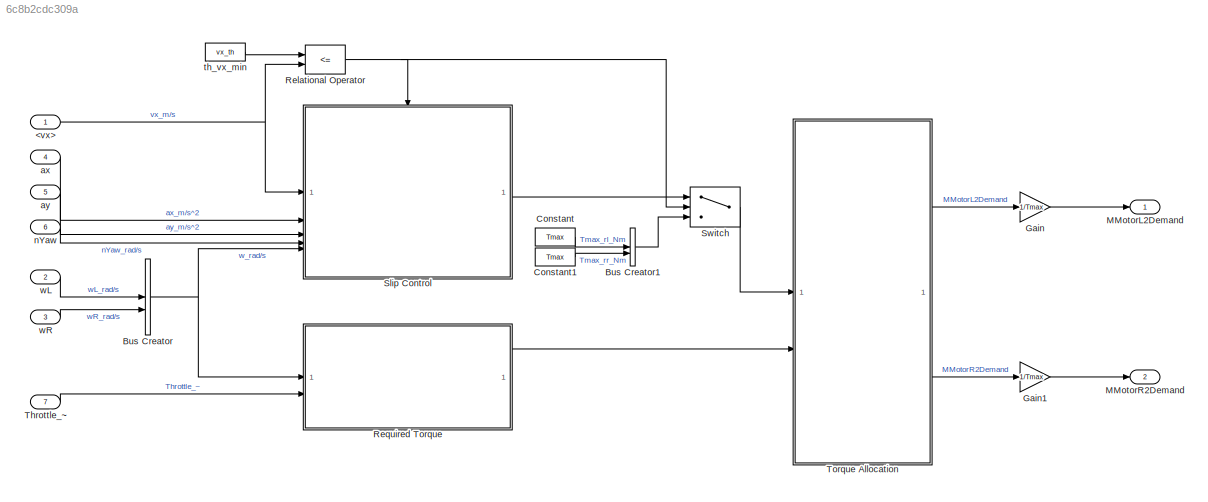
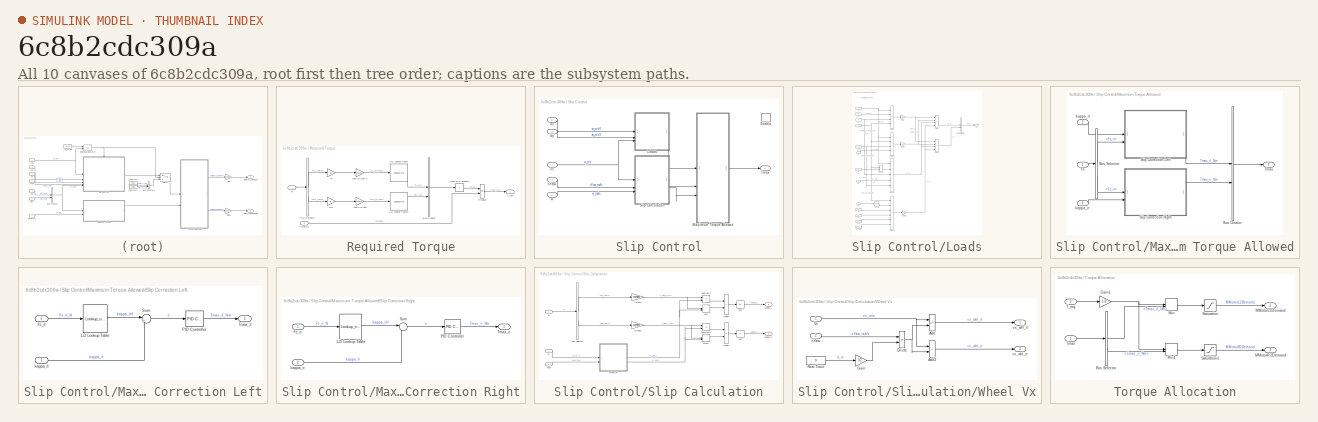
[diagram: thumbnail index - all 10 canvases of the model, root first then tree order]
MODEL slx_6c8b2cdc309a
KIND model
CONFIG AbsTol = 1e-3
CONFIG EnableMultiTasking = on
CONFIG FixedStep = 0.003
CONFIG MaxStep = 0.4
CONFIG MinStep = auto
CONFIG RelTol = 1e-3
CONFIG SampleTimeConstraint = Unconstrained
CONFIG SolverName = ode23t
CONFIG StartTime = 0.0
CONFIG StopTime = 100
WORKSPACE source: mxarray member
WORKSPACE Af = 1.2
WORKSPACE Control: object (value not decoded)
WORKSPACE D = 5
WORKSPACE Gr = 5
WORKSPACE I = 200
WORKSPACE L = 1.575
WORKSPACE Load_Ref = [0 400 500 600 700 800 900 1000 1100 1200 1300 1400 ... (18 elements, 18x1)]
WORKSPACE MotorT = [51.0306904762 51.0306904762 51.0306904762 51.0306904762 51.0306904762 51.0306904762 51.0306904762 51.0306904762 51.0306904762 51.0306904762 51.0306904762 51.0306904762 ... (47 elements, 1x47)]
WORKSPACE MotorW = [0 100 200 300 400 500 600 700 800 900 1000 1100 ... (47 elements, 1x47)]
WORKSPACE P = 50
WORKSPACE Slip_Ref = [0.08 0.08 0.152 0.116 0.102 0.096 0.092 0.09 0.09 0.09 0.094 0.098 ... (18 elements, 18x1)]
WORKSPACE Tmax = 51.0306904762
WORKSPACE a = 0.823
WORKSPACE a_cop = 0.8
WORKSPACE cd = -2.15
WORKSPACE g = 9.81
WORKSPACE h_CG = 0.315
WORKSPACE m = 315
WORKSPACE ro = 1.226
WORKSPACE rwheel = 0.263
WORKSPACE tr = 1.248
WORKSPACE vx_th = 0.7
BLOCK [Inport] <vx>
  OutDataTypeStr = single
  PortDimensions = 1
  SampleTime = 0.003
  SamplingMode = Sample based
  SignalType = real
  VarSizeSig = No
BLOCK [BusCreator] Bus Creator
  DisplayOption = bar
  InheritFromInputs = on
  Inputs = 2
BLOCK [BusCreator] Bus Creator1
  DisplayOption = bar
  InheritFromInputs = on
  Inputs = 2
BLOCK [Constant] Constant
  OutDataTypeStr = single
  Value = Tmax
BLOCK [Constant] Constant1
  OutDataTypeStr = single
  Value = Tmax
BLOCK [Gain] Gain
  Gain = 1/Tmax
  OutDataTypeStr = single
  ParamDataTypeStr = single
BLOCK [Gain] Gain1
  Gain = 1/Tmax
  OutDataTypeStr = single
  ParamDataTypeStr = single
BLOCK [Outport] MMotorL2Demand
  OutDataTypeStr = single
  PortDimensions = 1
  SampleTime = 0.003
  SamplingMode = Sample based
  SignalType = real
  VarSizeSig = No
BLOCK [Outport] MMotorR2Demand
  OutDataTypeStr = single
  Port = 2
  PortDimensions = 1
  SampleTime = 0.003
  SamplingMode = Sample based
  SignalType = real
  VarSizeSig = No
BLOCK [RelationalOperator] Relational Operator
  InputSameDT = off
  Operator = <=
  OutDataTypeStr = boolean
  RndMeth = Simplest
BLOCK [SubSystem] Required Torque
BLOCK [Lookup_n-D] Required Torque/1-D Lookup Table
  BreakpointsForDimension1 = MotorW
  InputPortMap = u0
  InternalRulePriority = Speed
  NumberOfTableDimensions = 1
  RndMeth = Simplest
  Table = MotorT
BLOCK [Lookup_n-D] Required Torque/1-D Lookup Table1
  BreakpointsForDimension1 = MotorW
  InputPortMap = u0
  InternalRulePriority = Speed
  NumberOfTableDimensions = 1
  RndMeth = Simplest
  Table = MotorT
BLOCK [BusCreator] Required Torque/Bus Creator
  DisplayOption = bar
  InheritFromInputs = on
  Inputs = 2
BLOCK [BusSelector] Required Torque/Bus Selector
  OutputSignals = wL_rad/s,wR_rad/s
BLOCK [Gain] Required Torque/Gr
  Gain = Gr
  OutDataTypeStr = single
  ParamDataTypeStr = single
BLOCK [Gain] Required Torque/Gr2
  Gain = Gr
  OutDataTypeStr = single
  ParamDataTypeStr = single
BLOCK [Product] Required Torque/Product
  OutDataTypeStr = single
BLOCK [Sum] Required Torque/Sum of Elements
  AccumDataTypeStr = single
  IconShape = rectangular
  Inputs = +
  OutDataTypeStr = single
BLOCK [Outport] Required Torque/T_req
  OutDataTypeStr = single
  PortDimensions = 1
  SampleTime = 0.003
  SignalType = real
  VarSizeSig = No
BLOCK [Inport] Required Torque/Throttle
  OutDataTypeStr = single
  Port = 2
  PortDimensions = 1
  SampleTime = 0.003
  SignalType = real
  VarSizeSig = No
BLOCK [Gain] Required Torque/rad//s to rpm
  Gain = 60/pi/2
  OutDataTypeStr = single
  ParamDataTypeStr = single
BLOCK [Gain] Required Torque/rad//s to rpm 2
  Gain = 60/pi/2
  OutDataTypeStr = single
  ParamDataTypeStr = single
BLOCK [Inport] Required Torque/w
  SampleTime = 0.003
  VarSizeSig = No
BLOCK [SubSystem] Slip Control
BLOCK [EnablePort] Slip Control/Enable
  StatesWhenEnabling = reset
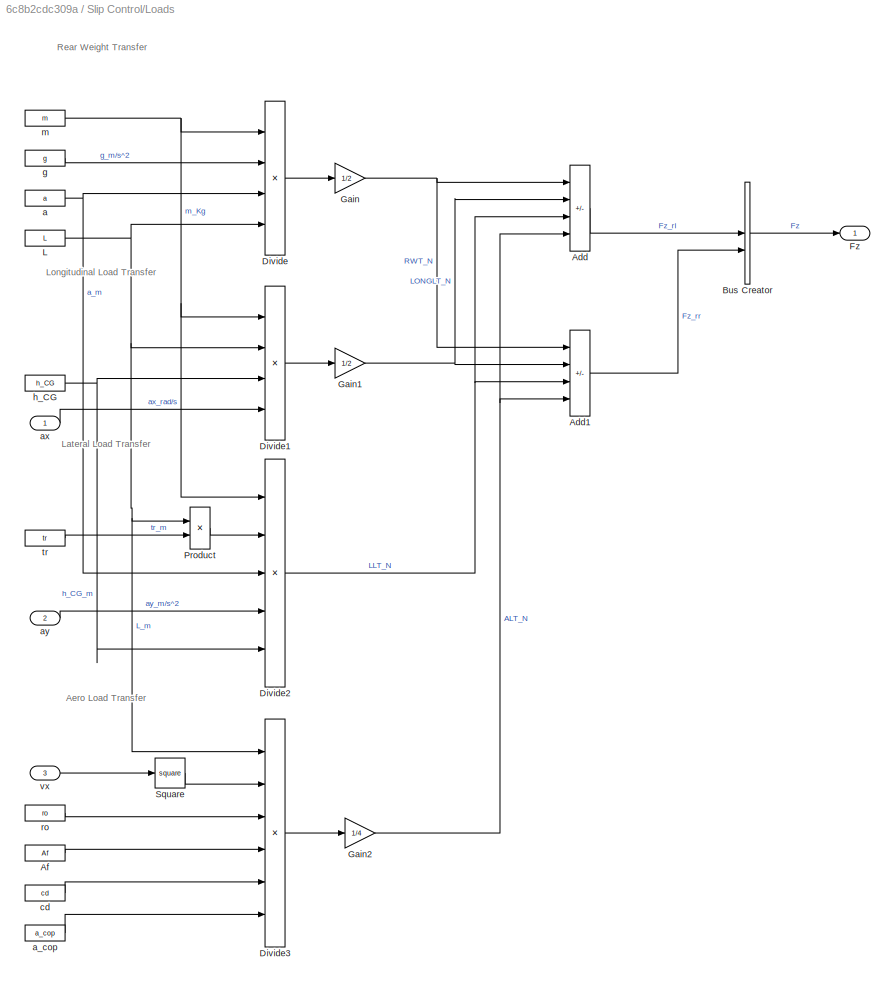
BLOCK [SubSystem] Slip Control/Loads
BLOCK [Sum] Slip Control/Loads/Add
  AccumDataTypeStr = single
  IconShape = rectangular
  Inputs = ++--
  OutDataTypeStr = single
BLOCK [Sum] Slip Control/Loads/Add1
  AccumDataTypeStr = single
  IconShape = rectangular
  Inputs = +++-
  OutDataTypeStr = single
BLOCK [Constant] Slip Control/Loads/Af
  OutDataTypeStr = single
  Value = Af
BLOCK [BusCreator] Slip Control/Loads/Bus Creator
  DisplayOption = bar
  InheritFromInputs = on
  Inputs = 2
BLOCK [Product] Slip Control/Loads/Divide
  Inputs = ***/
  OutDataTypeStr = single
BLOCK [Product] Slip Control/Loads/Divide1
  Inputs = */**
  OutDataTypeStr = single
BLOCK [Product] Slip Control/Loads/Divide2
  Inputs = */***
  OutDataTypeStr = single
BLOCK [Product] Slip Control/Loads/Divide3
  Inputs = /*****
  OutDataTypeStr = single
BLOCK [Outport] Slip Control/Loads/Fz
  SampleTime = 0.003
  VarSizeSig = No
BLOCK [Gain] Slip Control/Loads/Gain
  Gain = 1/2
  OutDataTypeStr = single
  ParamDataTypeStr = single
BLOCK [Gain] Slip Control/Loads/Gain1
  Gain = 1/2
  OutDataTypeStr = single
  ParamDataTypeStr = single
BLOCK [Gain] Slip Control/Loads/Gain2
  Gain = 1/4
  OutDataTypeStr = single
  ParamDataTypeStr = single
BLOCK [Constant] Slip Control/Loads/L
  OutDataTypeStr = single
  Value = L
BLOCK [Product] Slip Control/Loads/Product
BLOCK [Math] Slip Control/Loads/Square
  Operator = square
  OutDataTypeStr = single
BLOCK [Constant] Slip Control/Loads/a
  OutDataTypeStr = single
  Value = a
BLOCK [Constant] Slip Control/Loads/a_cop
  OutDataTypeStr = single
  Value = a_cop
BLOCK [Inport] Slip Control/Loads/ax
  OutDataTypeStr = single
  PortDimensions = 1
  SampleTime = 0.003
  SignalType = real
  VarSizeSig = No
BLOCK [Inport] Slip Control/Loads/ay
  OutDataTypeStr = single
  Port = 2
  PortDimensions = 1
  SampleTime = 0.003
  SignalType = real
  VarSizeSig = No
BLOCK [Constant] Slip Control/Loads/cd
  OutDataTypeStr = single
  Value = cd
BLOCK [Constant] Slip Control/Loads/g
  OutDataTypeStr = single
  Value = g
BLOCK [Constant] Slip Control/Loads/h_CG
  OutDataTypeStr = single
  Value = h_CG
BLOCK [Constant] Slip Control/Loads/m
  OutDataTypeStr = single
  Value = m
BLOCK [Constant] Slip Control/Loads/ro
  OutDataTypeStr = single
  Value = ro
BLOCK [Constant] Slip Control/Loads/tr
  OutDataTypeStr = single
  Value = tr
BLOCK [Inport] Slip Control/Loads/vx
  OutDataTypeStr = single
  Port = 3
  PortDimensions = 1
  SampleTime = 0.003
  SignalType = real
  VarSizeSig = No
BLOCK [SubSystem] Slip Control/Maximum Torque Allowed
BLOCK [BusCreator] Slip Control/Maximum Torque Allowed/Bus Creator
  DisplayOption = bar
  InheritFromInputs = on
  Inputs = 2
  NameLocation = left
BLOCK [BusSelector] Slip Control/Maximum Torque Allowed/Bus Selector
  OutputSignals = Fz_rl,Fz_rr
BLOCK [Inport] Slip Control/Maximum Torque Allowed/Fz
  SampleTime = 0.003
  VarSizeSig = No
BLOCK [SubSystem] Slip Control/Maximum Torque Allowed/Slip Correction Left
BLOCK [Lookup_n-D] Slip Control/Maximum Torque Allowed/Slip Correction Left/1-D Lookup Table
  BreakpointsForDimension1 = Load_Ref
  ExtrapMethod = Clip
  InputPortMap = u0
  InternalRulePriority = Speed
  NumberOfTableDimensions = 1
  RndMeth = Simplest
  Table = Slip_Ref
  UseLastTableValue = on
BLOCK [Inport] Slip Control/Maximum Torque Allowed/Slip Correction Left/Fz_rl
  OutDataTypeStr = single
  Port = 2
  PortDimensions = 1
  SampleTime = 0.003
  SignalType = real
  VarSizeSig = No
BLOCK [Reference] Slip Control/Maximum Torque Allowed/Slip Correction Left/PID Controller  REF=slpidlib/PID Controller
  LibrarySourceBlock = simulink/Continuous/PID Controller
  SourceBlock = slpidlib/PID Controller
  SourceType = PID 1dof
BLOCK [Sum] Slip Control/Maximum Torque Allowed/Slip Correction Left/Sum
  AccumDataTypeStr = single
  Inputs = |+-
  OutDataTypeStr = single
BLOCK [Outport] Slip Control/Maximum Torque Allowed/Slip Correction Left/Tmax_rl
  OutDataTypeStr = single
  PortDimensions = 1
  SampleTime = 0.003
  SignalType = real
  VarSizeSig = No
BLOCK [Inport] Slip Control/Maximum Torque Allowed/Slip Correction Left/kappa_rl
  OutDataTypeStr = single
  PortDimensions = 1
  SampleTime = 0.003
  SignalType = real
  VarSizeSig = No
BLOCK [SubSystem] Slip Control/Maximum Torque Allowed/Slip Correction Right
BLOCK [Lookup_n-D] Slip Control/Maximum Torque Allowed/Slip Correction Right/1-D Lookup Table
  BreakpointsForDimension1 = Load_Ref
  ExtrapMethod = Clip
  InputPortMap = u0
  InternalRulePriority = Speed
  NumberOfTableDimensions = 1
  RndMeth = Simplest
  Table = Slip_Ref
  UseLastTableValue = on
BLOCK [Inport] Slip Control/Maximum Torque Allowed/Slip Correction Right/Fz_rr
  OutDataTypeStr = single
  PortDimensions = 1
  SampleTime = 0.003
  SignalType = real
  VarSizeSig = No
BLOCK [Reference] Slip Control/Maximum Torque Allowed/Slip Correction Right/PID Controller  REF=slpidlib/PID Controller
  LibrarySourceBlock = simulink/Continuous/PID Controller
  SourceBlock = slpidlib/PID Controller
  SourceType = PID 1dof
BLOCK [Sum] Slip Control/Maximum Torque Allowed/Slip Correction Right/Sum
  AccumDataTypeStr = single
  Inputs = |+-
  OutDataTypeStr = single
BLOCK [Outport] Slip Control/Maximum Torque Allowed/Slip Correction Right/Tmax_rr
  OutDataTypeStr = single
  PortDimensions = 1
  SampleTime = 0.003
  SignalType = real
  VarSizeSig = No
BLOCK [Inport] Slip Control/Maximum Torque Allowed/Slip Correction Right/kappa_rr
  OutDataTypeStr = single
  Port = 2
  PortDimensions = 1
  SampleTime = 0.003
  SignalType = real
  VarSizeSig = No
BLOCK [Outport] Slip Control/Maximum Torque Allowed/Tmax
  SampleTime = 0.003
  VarSizeSig = No
BLOCK [Inport] Slip Control/Maximum Torque Allowed/kappa_rl
  OutDataTypeStr = single
  Port = 2
  PortDimensions = 1
  SampleTime = 0.003
  SignalType = real
  VarSizeSig = No
BLOCK [Inport] Slip Control/Maximum Torque Allowed/kappa_rr
  OutDataTypeStr = single
  Port = 3
  PortDimensions = 1
  SampleTime = 0.003
  SignalType = real
  VarSizeSig = No
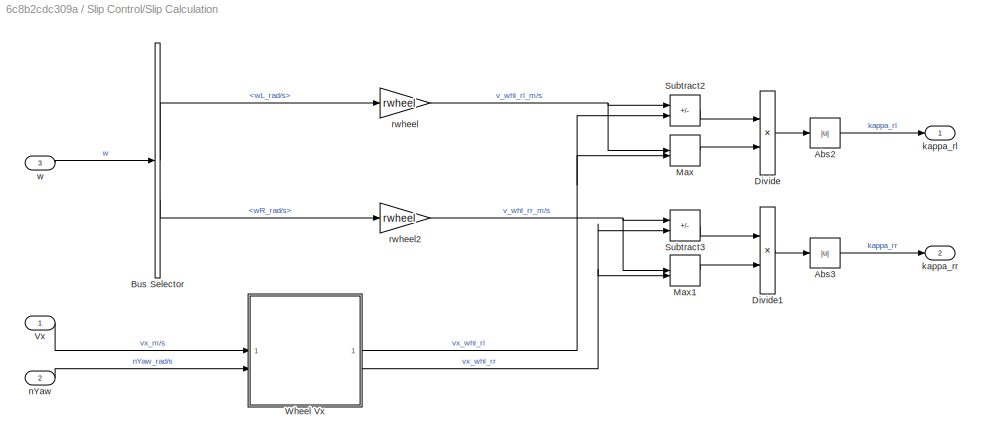
BLOCK [SubSystem] Slip Control/Slip Calculation
BLOCK [Abs] Slip Control/Slip Calculation/Abs2
  SaturateOnIntegerOverflow = off
BLOCK [Abs] Slip Control/Slip Calculation/Abs3
  SaturateOnIntegerOverflow = off
BLOCK [BusSelector] Slip Control/Slip Calculation/Bus Selector
  OutputSignals = wL_rad/s,wR_rad/s
BLOCK [Product] Slip Control/Slip Calculation/Divide
  Inputs = */
  OutDataTypeStr = single
BLOCK [Product] Slip Control/Slip Calculation/Divide1
  Inputs = */
  OutDataTypeStr = single
BLOCK [MinMax] Slip Control/Slip Calculation/Max
  Function = max
  Inputs = 2
  OutDataTypeStr = single
BLOCK [MinMax] Slip Control/Slip Calculation/Max1
  Function = max
  Inputs = 2
  OutDataTypeStr = single
BLOCK [Sum] Slip Control/Slip Calculation/Subtract2
  AccumDataTypeStr = single
  IconShape = rectangular
  Inputs = +-
  OutDataTypeStr = single
BLOCK [Sum] Slip Control/Slip Calculation/Subtract3
  AccumDataTypeStr = single
  IconShape = rectangular
  Inputs = +-
  OutDataTypeStr = single
BLOCK [Inport] Slip Control/Slip Calculation/Vx
  OutDataTypeStr = single
  PortDimensions = 1
  SampleTime = 0.003
  SignalType = real
  VarSizeSig = No
BLOCK [SubSystem] Slip Control/Slip Calculation/Wheel Vx
BLOCK [Sum] Slip Control/Slip Calculation/Wheel Vx/Add
  AccumDataTypeStr = single
  IconShape = rectangular
  Inputs = +-
  OutDataTypeStr = single
BLOCK [Sum] Slip Control/Slip Calculation/Wheel Vx/Add2
  AccumDataTypeStr = single
  IconShape = rectangular
  OutDataTypeStr = single
BLOCK [Product] Slip Control/Slip Calculation/Wheel Vx/Divide
  Inputs = **
  OutDataTypeStr = single
BLOCK [Gain] Slip Control/Slip Calculation/Wheel Vx/Gain
  Gain = 1/2
  OutDataTypeStr = single
  ParamDataTypeStr = single
BLOCK [Constant] Slip Control/Slip Calculation/Wheel Vx/Rear Track
  OutDataTypeStr = single
  Value = tr
BLOCK [Inport] Slip Control/Slip Calculation/Wheel Vx/Vx
  OutDataTypeStr = single
  PortDimensions = 1
  SampleTime = 0.003
  SignalType = real
  VarSizeSig = No
BLOCK [Inport] Slip Control/Slip Calculation/Wheel Vx/nYaw
  OutDataTypeStr = single
  Port = 2
  PortDimensions = 1
  SampleTime = 0.003
  SignalType = real
  VarSizeSig = No
BLOCK [Outport] Slip Control/Slip Calculation/Wheel Vx/vx_whl_rl
  OutDataTypeStr = single
  PortDimensions = 1
  SampleTime = 0.003
  SignalType = real
  VarSizeSig = No
BLOCK [Outport] Slip Control/Slip Calculation/Wheel Vx/vx_whl_rr
  OutDataTypeStr = single
  Port = 2
  PortDimensions = 1
  SampleTime = 0.003
  SignalType = real
  VarSizeSig = No
BLOCK [Outport] Slip Control/Slip Calculation/kappa_rl
  OutDataTypeStr = single
  PortDimensions = 1
  SampleTime = 0.003
  SignalType = real
  VarSizeSig = No
BLOCK [Outport] Slip Control/Slip Calculation/kappa_rr
  OutDataTypeStr = single
  Port = 2
  PortDimensions = 1
  SampleTime = 0.003
  SignalType = real
  VarSizeSig = No
BLOCK [Inport] Slip Control/Slip Calculation/nYaw
  OutDataTypeStr = single
  Port = 2
  PortDimensions = 1
  SampleTime = 0.003
  SignalType = real
  VarSizeSig = No
BLOCK [Gain] Slip Control/Slip Calculation/rwheel
  Gain = rwheel
  OutDataTypeStr = single
  ParamDataTypeStr = single
BLOCK [Gain] Slip Control/Slip Calculation/rwheel2
  Gain = rwheel
  OutDataTypeStr = single
  ParamDataTypeStr = single
BLOCK [Inport] Slip Control/Slip Calculation/w
  Port = 3
  SampleTime = 0.003
  VarSizeSig = No
BLOCK [Outport] Slip Control/Tmax
  SampleTime = 0.003
  VarSizeSig = No
BLOCK [Inport] Slip Control/ax
  OutDataTypeStr = single
  Port = 2
  PortDimensions = 1
  SampleTime = 0.003
  SignalType = real
  VarSizeSig = No
BLOCK [Inport] Slip Control/ay
  OutDataTypeStr = single
  Port = 3
  PortDimensions = 1
  SampleTime = 0.003
  SignalType = real
  VarSizeSig = No
BLOCK [Inport] Slip Control/nYaw
  OutDataTypeStr = single
  Port = 4
  PortDimensions = 1
  SampleTime = 0.003
  SignalType = real
  VarSizeSig = No
BLOCK [Inport] Slip Control/vx
  OutDataTypeStr = single
  PortDimensions = 1
  SampleTime = 0.003
  SignalType = real
  VarSizeSig = No
BLOCK [Inport] Slip Control/w
  Port = 5
  SampleTime = 0.003
  VarSizeSig = No
BLOCK [Switch] Switch
  Criteria = u2 ~= 0
  InputSameDT = off
  SaturateOnIntegerOverflow = off
BLOCK [Inport] Throttle_~
  OutDataTypeStr = single
  Port = 7
  PortDimensions = 1
  SampleTime = 0.003
  SamplingMode = Sample based
  SignalType = real
  VarSizeSig = No
BLOCK [SubSystem] Torque Allocation
BLOCK [BusSelector] Torque Allocation/Bus Selector
  OutputSignals = Tmax_rl_Nm,Tmax_rr_Nm
BLOCK [Gain] Torque Allocation/Gain1
  Gain = 1/2
  OutDataTypeStr = single
  ParamDataTypeStr = single
BLOCK [Outport] Torque Allocation/MMotorL2Demand
  OutDataTypeStr = single
  PortDimensions = 1
  SampleTime = 0.003
  SignalType = real
  VarSizeSig = No
BLOCK [Outport] Torque Allocation/MMotorR2Demand
  OutDataTypeStr = single
  Port = 2
  PortDimensions = 1
  SampleTime = 0.003
  SignalType = real
  VarSizeSig = No
BLOCK [MinMax] Torque Allocation/Min
  Inputs = 2
  OutDataTypeStr = single
BLOCK [MinMax] Torque Allocation/Min1
  Inputs = 2
  OutDataTypeStr = single
BLOCK [Saturate] Torque Allocation/Saturation
  LowerLimit = 0
  OutDataTypeStr = single
  UpperLimit = Tmax
BLOCK [Saturate] Torque Allocation/Saturation1
  LowerLimit = 0
  OutDataTypeStr = single
  UpperLimit = Tmax
BLOCK [Inport] Torque Allocation/T_req
  OutDataTypeStr = single
  Port = 2
  PortDimensions = 1
  SampleTime = 0.003
  SignalType = real
  VarSizeSig = No
BLOCK [Inport] Torque Allocation/Tmax
  SampleTime = 0.003
  VarSizeSig = No
BLOCK [Inport] ax
  OutDataTypeStr = single
  Port = 4
  PortDimensions = 1
  SampleTime = 0.003
  SamplingMode = Sample based
  SignalType = real
  VarSizeSig = No
BLOCK [Inport] ay
  OutDataTypeStr = single
  Port = 5
  PortDimensions = 1
  SampleTime = 0.003
  SamplingMode = Sample based
  SignalType = real
  VarSizeSig = No
BLOCK [Inport] nYaw
  OutDataTypeStr = single
  Port = 6
  PortDimensions = 1
  SampleTime = 0.003
  SamplingMode = Sample based
  SignalType = real
  VarSizeSig = No
BLOCK [Constant] th_vx_min
  OutDataTypeStr = single
  Value = vx_th
BLOCK [Inport] wL
  OutDataTypeStr = single
  Port = 2
  PortDimensions = 1
  SampleTime = 0.003
  SamplingMode = Sample based
  SignalType = real
  VarSizeSig = No
BLOCK [Inport] wR
  OutDataTypeStr = single
  Port = 3
  PortDimensions = 1
  SampleTime = 0.003
  SamplingMode = Sample based
  SignalType = real
  VarSizeSig = No
ANNOTATION Slip Control/Loads: Aero Load Transfer
ANNOTATION Slip Control/Loads: Lateral Load Transfer
ANNOTATION Slip Control/Loads: Longitudinal Load Transfer
ANNOTATION Slip Control/Loads: Rear Weight Transfer
NET <vx>:1 -> Relational Operator:2, Slip Control:1
LINE Bus Creator1:1 -> Switch:3
NET Bus Creator:1 -> Required Torque:1, Slip Control:5
LINE Constant1:1 -> Bus Creator1:2
LINE Constant:1 -> Bus Creator1:1
LINE Gain1:1 -> MMotorR2Demand:1
LINE Gain:1 -> MMotorL2Demand:1
NET Relational Operator:1 -> Slip Control:enable, Switch:2
LINE Required Torque/1-D Lookup Table1:1 -> Required Torque/Bus Creator:2
LINE Required Torque/1-D Lookup Table:1 -> Required Torque/Bus Creator:1
LINE Required Torque/Bus Creator:1 -> Required Torque/Sum of Elements:1
LINE Required Torque/Bus Selector:1 -> Required Torque/Gr:1
LINE Required Torque/Bus Selector:2 -> Required Torque/Gr2:1
LINE Required Torque/Gr2:1 -> Required Torque/rad//s to rpm:1
LINE Required Torque/Gr:1 -> Required Torque/rad//s to rpm 2:1
LINE Required Torque/Product:1 -> Required Torque/T_req:1
LINE Required Torque/Sum of Elements:1 -> Required Torque/Product:1
LINE Required Torque/Throttle:1 -> Required Torque/Product:2
LINE Required Torque/rad//s to rpm 2:1 -> Required Torque/1-D Lookup Table:1
LINE Required Torque/rad//s to rpm:1 -> Required Torque/1-D Lookup Table1:1
LINE Required Torque/w:1 -> Required Torque/Bus Selector:1
LINE Required Torque:1 -> Torque Allocation:2
LINE Slip Control/Loads/Add1:1 -> Slip Control/Loads/Bus Creator:2
LINE Slip Control/Loads/Add:1 -> Slip Control/Loads/Bus Creator:1
LINE Slip Control/Loads/Af:1 -> Slip Control/Loads/Divide3:4
LINE Slip Control/Loads/Bus Creator:1 -> Slip Control/Loads/Fz:1
LINE Slip Control/Loads/Divide1:1 -> Slip Control/Loads/Gain1:1
NET Slip Control/Loads/Divide2:1 -> Slip Control/Loads/Add1:3, Slip Control/Loads/Add:3
LINE Slip Control/Loads/Divide3:1 -> Slip Control/Loads/Gain2:1
LINE Slip Control/Loads/Divide:1 -> Slip Control/Loads/Gain:1
NET Slip Control/Loads/Gain1:1 -> Slip Control/Loads/Add1:2, Slip Control/Loads/Add:2
NET Slip Control/Loads/Gain2:1 -> Slip Control/Loads/Add1:4, Slip Control/Loads/Add:4
NET Slip Control/Loads/Gain:1 -> Slip Control/Loads/Add1:1, Slip Control/Loads/Add:1
NET Slip Control/Loads/L:1 -> Slip Control/Loads/Divide1:2, Slip Control/Loads/Divide3:1, Slip Control/Loads/Divide:4, Slip Control/Loads/Product:1
LINE Slip Control/Loads/Product:1 -> Slip Control/Loads/Divide2:2
LINE Slip Control/Loads/Square:1 -> Slip Control/Loads/Divide3:2
NET Slip Control/Loads/a:1 -> Slip Control/Loads/Divide2:3, Slip Control/Loads/Divide:3
LINE Slip Control/Loads/a_cop:1 -> Slip Control/Loads/Divide3:6
LINE Slip Control/Loads/ax:1 -> Slip Control/Loads/Divide1:4
LINE Slip Control/Loads/ay:1 -> Slip Control/Loads/Divide2:4
LINE Slip Control/Loads/cd:1 -> Slip Control/Loads/Divide3:5
LINE Slip Control/Loads/g:1 -> Slip Control/Loads/Divide:2
NET Slip Control/Loads/h_CG:1 -> Slip Control/Loads/Divide1:3, Slip Control/Loads/Divide2:5
NET Slip Control/Loads/m:1 -> Slip Control/Loads/Divide1:1, Slip Control/Loads/Divide2:1, Slip Control/Loads/Divide:1
LINE Slip Control/Loads/ro:1 -> Slip Control/Loads/Divide3:3
LINE Slip Control/Loads/tr:1 -> Slip Control/Loads/Product:2
LINE Slip Control/Loads/vx:1 -> Slip Control/Loads/Square:1
LINE Slip Control/Loads:1 -> Slip Control/Maximum Torque Allowed:1
LINE Slip Control/Maximum Torque Allowed/Bus Creator:1 -> Slip Control/Maximum Torque Allowed/Tmax:1
LINE Slip Control/Maximum Torque Allowed/Bus Selector:1 -> Slip Control/Maximum Torque Allowed/Slip Correction Left:2
LINE Slip Control/Maximum Torque Allowed/Bus Selector:2 -> Slip Control/Maximum Torque Allowed/Slip Correction Right:1
LINE Slip Control/Maximum Torque Allowed/Fz:1 -> Slip Control/Maximum Torque Allowed/Bus Selector:1
LINE Slip Control/Maximum Torque Allowed/Slip Correction Left/1-D Lookup Table:1 -> Slip Control/Maximum Torque Allowed/Slip Correction Left/Sum:1
LINE Slip Control/Maximum Torque Allowed/Slip Correction Left/Fz_rl:1 -> Slip Control/Maximum Torque Allowed/Slip Correction Left/1-D Lookup Table:1
LINE Slip Control/Maximum Torque Allowed/Slip Correction Left/PID Controller:1 -> Slip Control/Maximum Torque Allowed/Slip Correction Left/Tmax_rl:1
LINE Slip Control/Maximum Torque Allowed/Slip Correction Left/Sum:1 -> Slip Control/Maximum Torque Allowed/Slip Correction Left/PID Controller:1
LINE Slip Control/Maximum Torque Allowed/Slip Correction Left/kappa_rl:1 -> Slip Control/Maximum Torque Allowed/Slip Correction Left/Sum:2
LINE Slip Control/Maximum Torque Allowed/Slip Correction Left:1 -> Slip Control/Maximum Torque Allowed/Bus Creator:1
LINE Slip Control/Maximum Torque Allowed/Slip Correction Right/1-D Lookup Table:1 -> Slip Control/Maximum Torque Allowed/Slip Correction Right/Sum:1
LINE Slip Control/Maximum Torque Allowed/Slip Correction Right/Fz_rr:1 -> Slip Control/Maximum Torque Allowed/Slip Correction Right/1-D Lookup Table:1
LINE Slip Control/Maximum Torque Allowed/Slip Correction Right/PID Controller:1 -> Slip Control/Maximum Torque Allowed/Slip Correction Right/Tmax_rr:1
LINE Slip Control/Maximum Torque Allowed/Slip Correction Right/Sum:1 -> Slip Control/Maximum Torque Allowed/Slip Correction Right/PID Controller:1
LINE Slip Control/Maximum Torque Allowed/Slip Correction Right/kappa_rr:1 -> Slip Control/Maximum Torque Allowed/Slip Correction Right/Sum:2
LINE Slip Control/Maximum Torque Allowed/Slip Correction Right:1 -> Slip Control/Maximum Torque Allowed/Bus Creator:2
LINE Slip Control/Maximum Torque Allowed/kappa_rl:1 -> Slip Control/Maximum Torque Allowed/Slip Correction Left:1
LINE Slip Control/Maximum Torque Allowed/kappa_rr:1 -> Slip Control/Maximum Torque Allowed/Slip Correction Right:2
LINE Slip Control/Maximum Torque Allowed:1 -> Slip Control/Tmax:1
LINE Slip Control/Slip Calculation/Abs2:1 -> Slip Control/Slip Calculation/kappa_rl:1
LINE Slip Control/Slip Calculation/Abs3:1 -> Slip Control/Slip Calculation/kappa_rr:1
LINE Slip Control/Slip Calculation/Bus Selector:1 -> Slip Control/Slip Calculation/rwheel:1
LINE Slip Control/Slip Calculation/Bus Selector:2 -> Slip Control/Slip Calculation/rwheel2:1
LINE Slip Control/Slip Calculation/Divide1:1 -> Slip Control/Slip Calculation/Abs3:1
LINE Slip Control/Slip Calculation/Divide:1 -> Slip Control/Slip Calculation/Abs2:1
LINE Slip Control/Slip Calculation/Max1:1 -> Slip Control/Slip Calculation/Divide1:2
LINE Slip Control/Slip Calculation/Max:1 -> Slip Control/Slip Calculation/Divide:2
LINE Slip Control/Slip Calculation/Subtract2:1 -> Slip Control/Slip Calculation/Divide:1
LINE Slip Control/Slip Calculation/Subtract3:1 -> Slip Control/Slip Calculation/Divide1:1
LINE Slip Control/Slip Calculation/Vx:1 -> Slip Control/Slip Calculation/Wheel Vx:1
LINE Slip Control/Slip Calculation/Wheel Vx/Add2:1 -> Slip Control/Slip Calculation/Wheel Vx/vx_whl_rr:1
LINE Slip Control/Slip Calculation/Wheel Vx/Add:1 -> Slip Control/Slip Calculation/Wheel Vx/vx_whl_rl:1
NET Slip Control/Slip Calculation/Wheel Vx/Divide:1 -> Slip Control/Slip Calculation/Wheel Vx/Add2:2, Slip Control/Slip Calculation/Wheel Vx/Add:2
LINE Slip Control/Slip Calculation/Wheel Vx/Gain:1 -> Slip Control/Slip Calculation/Wheel Vx/Divide:2
LINE Slip Control/Slip Calculation/Wheel Vx/Rear Track:1 -> Slip Control/Slip Calculation/Wheel Vx/Gain:1
NET Slip Control/Slip Calculation/Wheel Vx/Vx:1 -> Slip Control/Slip Calculation/Wheel Vx/Add2:1, Slip Control/Slip Calculation/Wheel Vx/Add:1
LINE Slip Control/Slip Calculation/Wheel Vx/nYaw:1 -> Slip Control/Slip Calculation/Wheel Vx/Divide:1
NET Slip Control/Slip Calculation/Wheel Vx:1 -> Slip Control/Slip Calculation/Max:2, Slip Control/Slip Calculation/Subtract2:2
NET Slip Control/Slip Calculation/Wheel Vx:2 -> Slip Control/Slip Calculation/Max1:2, Slip Control/Slip Calculation/Subtract3:2
LINE Slip Control/Slip Calculation/nYaw:1 -> Slip Control/Slip Calculation/Wheel Vx:2
NET Slip Control/Slip Calculation/rwheel2:1 -> Slip Control/Slip Calculation/Max1:1, Slip Control/Slip Calculation/Subtract3:1
NET Slip Control/Slip Calculation/rwheel:1 -> Slip Control/Slip Calculation/Max:1, Slip Control/Slip Calculation/Subtract2:1
LINE Slip Control/Slip Calculation/w:1 -> Slip Control/Slip Calculation/Bus Selector:1
LINE Slip Control/Slip Calculation:1 -> Slip Control/Maximum Torque Allowed:2
LINE Slip Control/Slip Calculation:2 -> Slip Control/Maximum Torque Allowed:3
LINE Slip Control/ax:1 -> Slip Control/Loads:1
LINE Slip Control/ay:1 -> Slip Control/Loads:2
LINE Slip Control/nYaw:1 -> Slip Control/Slip Calculation:2
NET Slip Control/vx:1 -> Slip Control/Loads:3, Slip Control/Slip Calculation:1
LINE Slip Control/w:1 -> Slip Control/Slip Calculation:3
LINE Slip Control:1 -> Switch:1
LINE Switch:1 -> Torque Allocation:1
LINE Throttle_~:1 -> Required Torque:2
LINE Torque Allocation/Bus Selector:1 -> Torque Allocation/Min:2
LINE Torque Allocation/Bus Selector:2 -> Torque Allocation/Min1:2
NET Torque Allocation/Gain1:1 -> Torque Allocation/Min1:1, Torque Allocation/Min:1
LINE Torque Allocation/Min1:1 -> Torque Allocation/Saturation1:1
LINE Torque Allocation/Min:1 -> Torque Allocation/Saturation:1
LINE Torque Allocation/Saturation1:1 -> Torque Allocation/MMotorR2Demand:1
LINE Torque Allocation/Saturation:1 -> Torque Allocation/MMotorL2Demand:1
LINE Torque Allocation/T_req:1 -> Torque Allocation/Gain1:1
LINE Torque Allocation/Tmax:1 -> Torque Allocation/Bus Selector:1
LINE Torque Allocation:1 -> Gain:1
LINE Torque Allocation:2 -> Gain1:1
LINE ax:1 -> Slip Control:2
LINE ay:1 -> Slip Control:3
LINE nYaw:1 -> Slip Control:4
LINE th_vx_min:1 -> Relational Operator:1
LINE wL:1 -> Bus Creator:1
LINE wR:1 -> Bus Creator:2
note: NET lines group one-source signal fan-out (src -> all destinations, sorted); 1:1 wires keep LINE
